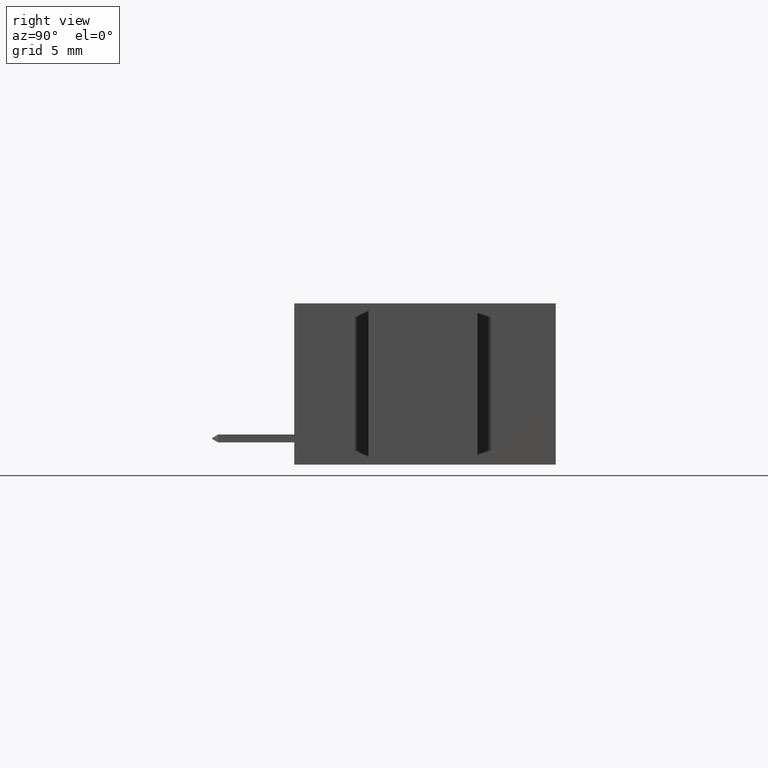
[diagram: clean part render]
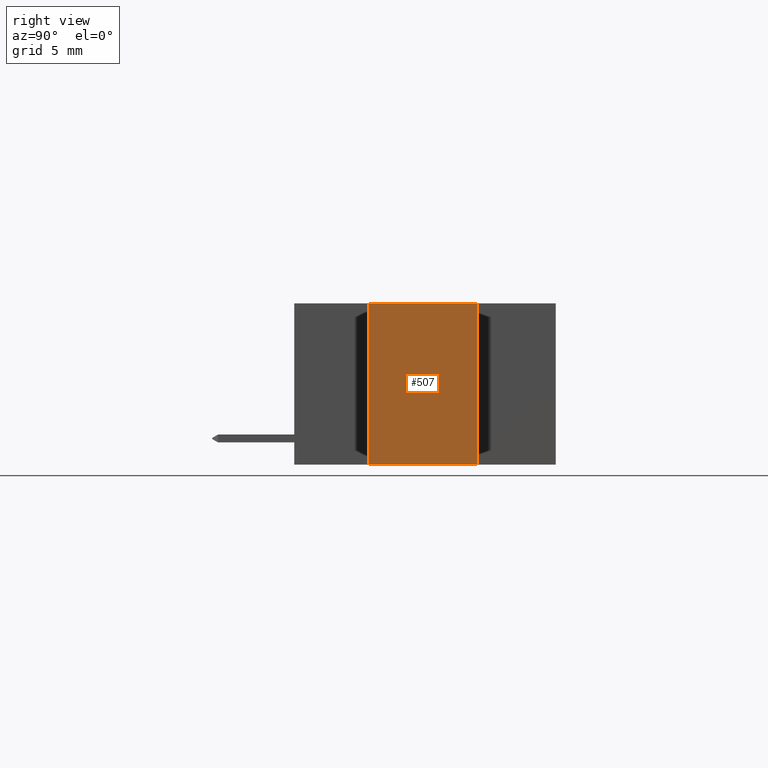
[diagram: same view with one face highlighted and labeled with its STEP entity id]
A machine part, right view. The second image highlights one B-rep face of the part: STEP entity #507.
In plain terms, the highlighted planar face has unit normal (-1, 0, 0).
Its self-contained STEP definition (entity closure, byte-faithful):
#203 = CARTESIAN_POINT ( 'NONE',  ( 1.435000000000000053, 0.4199999999999999845, 0.0000000000000000000 ) ) ;
#209 = CARTESIAN_POINT ( 'NONE',  ( 1.435000000000000053, 0.5999999999999999778, 0.0000000000000000000 ) ) ;
#504 = LINE ( 'NONE', #4375, #1935 ) ;
#507 = ADVANCED_FACE ( 'NONE', ( #4666 ), #7980, .F. ) ;
#547 = DIRECTION ( 'NONE',  ( -0.0000000000000000000, -1.000000000000000000, -0.0000000000000000000 ) ) ;
#634 = ORIENTED_EDGE ( 'NONE', *, *, #7547, .F. ) ;
#758 = LINE ( 'NONE', #203, #2456 ) ;
#879 = DIRECTION ( 'NONE',  ( 0.0000000000000000000, 0.0000000000000000000, -1.000000000000000000 ) ) ;
#1015 = DIRECTION ( 'NONE',  ( 0.0000000000000000000, 0.0000000000000000000, 1.000000000000000000 ) ) ;
#1160 = AXIS2_PLACEMENT_3D ( 'NONE', #209, #7452, #1015 ) ;
#1521 = VECTOR ( 'NONE', #5549, 39.37007874015748143 ) ;
#1573 = ORIENTED_EDGE ( 'NONE', *, *, #6181, .F. ) ;
#1886 = CARTESIAN_POINT ( 'NONE',  ( 1.435000000000000053, 0.5999999999999999778, -0.3699999999999999956 ) ) ;
#1935 = VECTOR ( 'NONE', #547, 39.37007874015748143 ) ;
#1987 = CARTESIAN_POINT ( 'NONE',  ( 1.434999999999999831, 0.1699999999999999845, -0.3699999999999999400 ) ) ;
#2456 = VECTOR ( 'NONE', #879, 39.37007874015748143 ) ;
#2692 = VERTEX_POINT ( 'NONE', #1987 ) ;
#2714 = VECTOR ( 'NONE', #6960, 39.37007874015748143 ) ;
#3032 = LINE ( 'NONE', #1886, #2714 ) ;
#4375 = CARTESIAN_POINT ( 'NONE',  ( 1.435000000000000053, 0.5999999999999999778, 0.0000000000000000000 ) ) ;
#4666 = FACE_OUTER_BOUND ( 'NONE', #8234, .T. ) ;
#4933 = LINE ( 'NONE', #6950, #1521 ) ;
#5291 = CARTESIAN_POINT ( 'NONE',  ( 1.435000000000000053, 0.4200000000000000400, -0.3699999999999999956 ) ) ;
#5318 = VERTEX_POINT ( 'NONE', #6539 ) ;
#5549 = DIRECTION ( 'NONE',  ( -0.0000000000000000000, -0.0000000000000000000, 1.000000000000000000 ) ) ;
#5796 = EDGE_CURVE ( 'NONE', #5318, #7127, #758, .T. ) ;
#6181 = EDGE_CURVE ( 'NONE', #2692, #6742, #4933, .T. ) ;
#6389 = EDGE_CURVE ( 'NONE', #5318, #6742, #504, .T. ) ;
#6428 = ORIENTED_EDGE ( 'NONE', *, *, #5796, .F. ) ;
#6539 = CARTESIAN_POINT ( 'NONE',  ( 1.435000000000000053, 0.4199999999999999845, 0.0000000000000000000 ) ) ;
#6742 = VERTEX_POINT ( 'NONE', #7370 ) ;
#6950 = CARTESIAN_POINT ( 'NONE',  ( 1.434999999999999831, 0.1699999999999999845, 1.757368156776451782E-16 ) ) ;
#6960 = DIRECTION ( 'NONE',  ( -0.0000000000000000000, -1.000000000000000000, -0.0000000000000000000 ) ) ;
#7029 = ORIENTED_EDGE ( 'NONE', *, *, #6389, .T. ) ;
#7127 = VERTEX_POINT ( 'NONE', #5291 ) ;
#7370 = CARTESIAN_POINT ( 'NONE',  ( 1.434999999999999831, 0.1699999999999999845, 1.757368156776451782E-16 ) ) ;
#7452 = DIRECTION ( 'NONE',  ( -1.000000000000000000, 0.0000000000000000000, 0.0000000000000000000 ) ) ;
#7547 = EDGE_CURVE ( 'NONE', #7127, #2692, #3032, .T. ) ;
#7980 = PLANE ( 'NONE',  #1160 ) ;
#8234 = EDGE_LOOP ( 'NONE', ( #1573, #634, #6428, #7029 ) ) ;